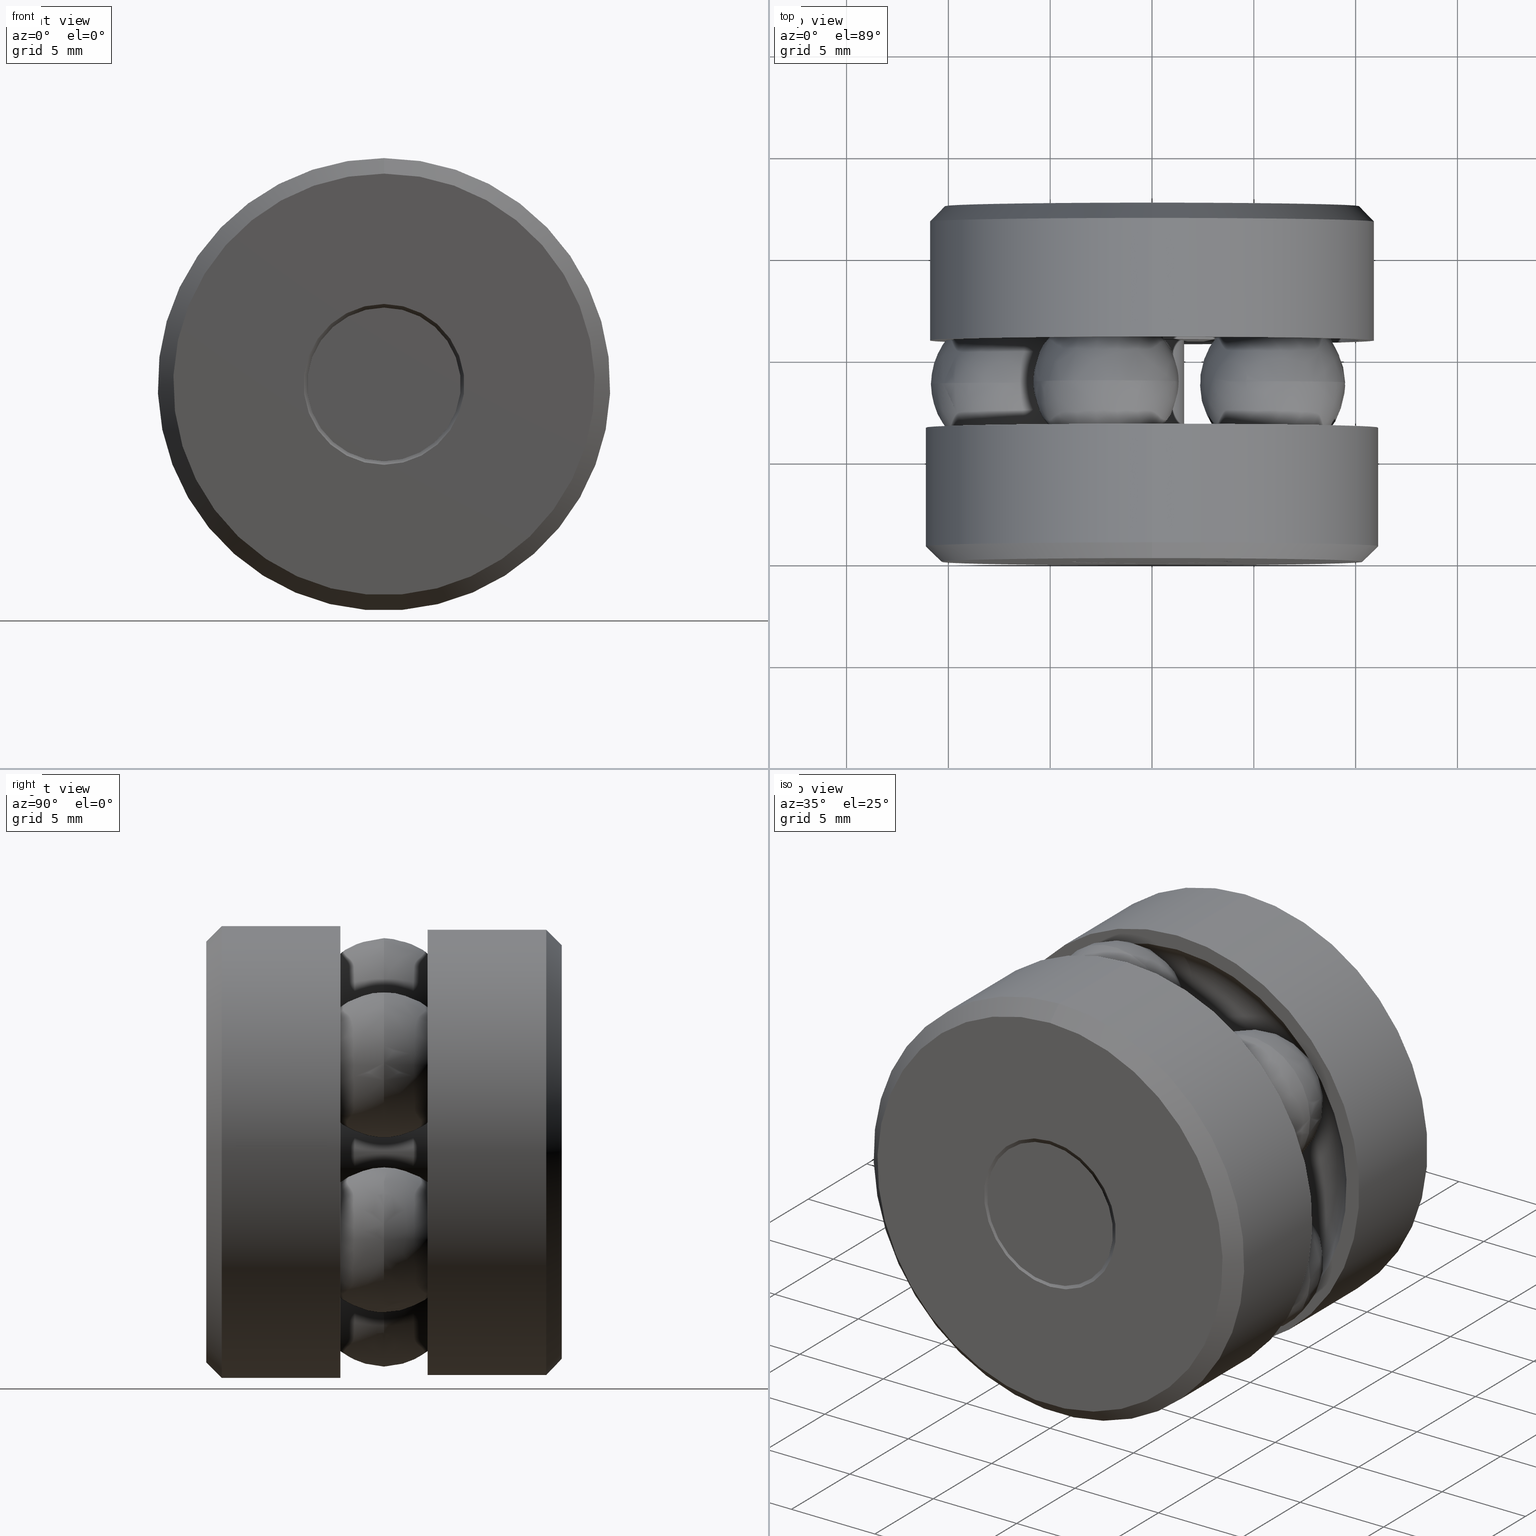
[diagram: canonical four-view strip — front | top / right | iso, engineering-drawing reading convention]
A machine part, canonical four-view strip (front | top / right | iso — engineering-drawing reading convention). The complete STEP part file that produces these views, byte-faithful:
ISO-10303-21;
HEADER;
FILE_DESCRIPTION (( 'STEP AP203' ),
    '1' );
FILE_NAME ('T-114RG_T-114RG-0014.step',
    '2016-02-04T15:34:10',
    ( '' ),
    ( '' ),
    'SwSTEP 2.0',
    'SolidWorks 2016',
    '' );
FILE_SCHEMA (( 'CONFIG_CONTROL_DESIGN' ));
ENDSEC;

DATA;
#1 = CARTESIAN_POINT ( 'NONE',  ( 0.2329968943799832800, 0.3437500000000000000, -0.1692821526602342500 ) ) ;
#2 = APPROVAL_DATE_TIME ( #118, #346 ) ;
#3 = FACE_BOUND ( 'NONE', #28, .T. ) ;
#4 = CLOSED_SHELL ( 'NONE', ( #478, #150, #63, #67, #280 ) ) ;
#5 = EDGE_LOOP ( 'NONE', ( #456 ) ) ;
#6 = APPROVAL ( #99, 'UNSPECIFIED' ) ;
#7 = DIRECTION ( 'NONE',  ( 0.0000000000000000000, 0.0000000000000000000, 1.000000000000000000 ) ) ;
#8 = EDGE_CURVE ( 'NONE', #77, #77, #245, .T. ) ;
#9 = FACE_OUTER_BOUND ( 'NONE', #102, .T. ) ;
#10 = DIRECTION ( 'NONE',  ( 0.0000000000000000000, 0.0000000000000000000, 1.000000000000000000 ) ) ;
#11 = EDGE_LOOP ( 'NONE', ( #332 ) ) ;
#12 = EDGE_LOOP ( 'NONE', ( #404 ) ) ;
#13 = DIRECTION ( 'NONE',  ( -0.0000000000000000000, 1.000000000000000000, -0.0000000000000000000 ) ) ;
#14 = CARTESIAN_POINT ( 'NONE',  ( 0.0000000000000000000, 0.08800856781186523800, 0.0000000000000000000 ) ) ;
#15 = CARTESIAN_POINT ( 'NONE',  ( 0.0000000000000000000, -1.045368599223303100E-018, 0.1555085678118642600 ) ) ;
#16 = AXIS2_PLACEMENT_3D ( 'NONE', #503, #502, #274 ) ;
#17 = APPROVAL_PERSON_ORGANIZATION ( #130, #346, #432 ) ;
#18 = CIRCLE ( 'NONE', #495, 0.1555085678118642600 ) ;
#19 = CARTESIAN_POINT ( 'NONE',  ( 0.0000000000000000000, 0.0000000000000000000, 0.0000000000000000000 ) ) ;
#20 = PLANE ( 'NONE',  #361 ) ;
#21 = EDGE_CURVE ( 'NONE', #295, #295, #18, .T. ) ;
#22 = ADVANCED_FACE ( 'NONE', ( #460, #344 ), #357, .T. ) ;
#23 = CARTESIAN_POINT ( 'NONE',  ( 0.0000000000000000000, 0.08593749999999998600, 0.06250000000000001400 ) ) ;
#24 = FACE_OUTER_BOUND ( 'NONE', #532, .T. ) ;
#25 = VERTEX_POINT ( 'NONE', #129 ) ;
#26 = ORIENTED_EDGE ( 'NONE', *, *, #345, .T. ) ;
#27 = ADVANCED_FACE ( 'NONE', ( #355, #449 ), #234, .F. ) ;
#28 = EDGE_LOOP ( 'NONE', ( #57 ) ) ;
#29 = CARTESIAN_POINT ( 'NONE',  ( 0.0000000000000000000, 0.4280500000000000400, 0.06750000000000004600 ) ) ;
#30 = AXIS2_PLACEMENT_3D ( 'NONE', #141, #438, #107 ) ;
#31 = COORDINATED_UNIVERSAL_TIME_OFFSET ( 5, 0, .BEHIND. ) ;
#32 = ORIENTED_EDGE ( 'NONE', *, *, #221, .F. ) ;
#33 = CARTESIAN_POINT ( 'NONE',  ( 0.0000000000000000000, 0.6574999999999996400, 0.0000000000000000000 ) ) ;
#34 = ADVANCED_BREP_SHAPE_REPRESENTATION ( 'T-114RG_T-114RG-0014', ( #74, #519, #276, #372, #426, #178, #337, #235, #463 ), #360 ) ;
#35 = CC_DESIGN_APPROVAL ( #6, ( #524 ) ) ;
#36 = DIRECTION ( 'NONE',  ( -0.3090169943749582800, 0.0000000000000000000, -0.9510565162951500900 ) ) ;
#37 = DIRECTION ( 'NONE',  ( -0.0000000000000000000, 1.000000000000000000, -0.0000000000000000000 ) ) ;
#38 = FACE_OUTER_BOUND ( 'NONE', #103, .T. ) ;
#39 = VERTEX_POINT ( 'NONE', #333 ) ;
#40 = ORIENTED_EDGE ( 'NONE', *, *, #8, .T. ) ;
#41 = AXIS2_PLACEMENT_3D ( 'NONE', #184, #183, #190 ) ;
#42 = DIRECTION ( 'NONE',  ( 0.0000000000000000000, 0.0000000000000000000, 1.000000000000000000 ) ) ;
#43 = CARTESIAN_POINT ( 'NONE',  ( 0.0000000000000000000, 0.03000000000000031100, 0.0000000000000000000 ) ) ;
#44 = DATE_AND_TIME ( #159, #271 ) ;
#45 = ORIENTED_EDGE ( 'NONE', *, *, #380, .T. ) ;
#46 = EDGE_LOOP ( 'NONE', ( #147 ) ) ;
#47 = AXIS2_PLACEMENT_3D ( 'NONE', #430, #520, #541 ) ;
#48 = APPLICATION_PROTOCOL_DEFINITION ( 'international standard', 'config_control_design', 1994, #275 ) ;
#49 = ORIENTED_EDGE ( 'NONE', *, *, #392, .T. ) ;
#50 = DIRECTION ( 'NONE',  ( 0.0000000000000000000, -1.000000000000000000, 0.0000000000000000000 ) ) ;
#51 = FACE_OUTER_BOUND ( 'NONE', #93, .T. ) ;
#52 = VERTEX_POINT ( 'NONE', #515 ) ;
#53 = EDGE_LOOP ( 'NONE', ( #267 ) ) ;
#54 = SHAPE_DEFINITION_REPRESENTATION ( #256, #34 ) ;
#55 = DIRECTION ( 'NONE',  ( 0.0000000000000000000, -0.0000000000000000000, -1.000000000000000000 ) ) ;
#56 = PERSON_AND_ORGANIZATION ( #489, #531 ) ;
#57 = ORIENTED_EDGE ( 'NONE', *, *, #200, .T. ) ;
#58 = CARTESIAN_POINT ( 'NONE',  ( 0.0000000000000000000, 0.03000000000000031100, 0.0000000000000000000 ) ) ;
#59 = CARTESIAN_POINT ( 'NONE',  ( 0.0000000000000000000, 0.6875000000000000000, 0.0000000000000000000 ) ) ;
#60 = DIRECTION ( 'NONE',  ( 0.0000000000000000000, 0.0000000000000000000, 1.000000000000000000 ) ) ;
#61 = DIRECTION ( 'NONE',  ( -0.0000000000000000000, 1.000000000000000000, -0.0000000000000000000 ) ) ;
#62 = CC_DESIGN_PERSON_AND_ORGANIZATION_ASSIGNMENT ( #70, #220, ( #524 ) ) ;
#63 = ADVANCED_FACE ( 'NONE', ( #3, #119 ), #424, .T. ) ;
#64 = FACE_OUTER_BOUND ( 'NONE', #481, .T. ) ;
#65 = VERTEX_POINT ( 'NONE', #504 ) ;
#66 = EDGE_LOOP ( 'NONE', ( #115 ) ) ;
#67 = ADVANCED_FACE ( 'NONE', ( #439, #334 ), #324, .T. ) ;
#68 = AXIS2_PLACEMENT_3D ( 'NONE', #127, #144, #143 ) ;
#69 = FACE_BOUND ( 'NONE', #80, .T. ) ;
#70 = PERSON_AND_ORGANIZATION ( #489, #531 ) ;
#71 = ORIENTED_EDGE ( 'NONE', *, *, #451, .T. ) ;
#72 = DIRECTION ( 'NONE',  ( -0.0000000000000000000, 1.000000000000000000, -0.0000000000000000000 ) ) ;
#73 = AXIS2_PLACEMENT_3D ( 'NONE', #469, #377, #441 ) ;
#74 = MANIFOLD_SOLID_BREP ( 'Revolve2[1]', #4 ) ;
#75 = DIRECTION ( 'NONE',  ( 0.0000000000000000000, 0.0000000000000000000, 1.000000000000000000 ) ) ;
#76 = FACE_BOUND ( 'NONE', #5, .T. ) ;
#77 = VERTEX_POINT ( 'NONE', #98 ) ;
#78 = EDGE_LOOP ( 'NONE', ( #296 ) ) ;
#79 = CLOSED_SHELL ( 'NONE', ( #527 ) ) ;
#80 = EDGE_LOOP ( 'NONE', ( #525 ) ) ;
#81 = CLOSED_SHELL ( 'NONE', ( #112 ) ) ;
#82 = CARTESIAN_POINT ( 'NONE',  ( -0.1484374999999990000, 0.0000000000000000000, 0.0000000000000000000 ) ) ;
#83 = DIRECTION ( 'NONE',  ( -0.0000000000000000000, 1.000000000000000000, -0.0000000000000000000 ) ) ;
#84 = FACE_OUTER_BOUND ( 'NONE', #181, .T. ) ;
#85 = COORDINATED_UNIVERSAL_TIME_OFFSET ( 5, 0, .BEHIND. ) ;
#86 = EDGE_LOOP ( 'NONE', ( #71 ) ) ;
#87 = AXIS2_PLACEMENT_3D ( 'NONE', #385, #379, #351 ) ;
#88 = DIRECTION ( 'NONE',  ( -0.9510565162951500900, 0.0000000000000000000, 0.3090169943749582800 ) ) ;
#89 = APPROVAL_STATUS ( 'not_yet_approved' ) ;
#90 =( NAMED_UNIT ( * ) PLANE_ANGLE_UNIT ( ) SI_UNIT ( $, .RADIAN. ) );
#91 = DIRECTION ( 'NONE',  ( 0.0000000000000000000, 0.0000000000000000000, 1.000000000000000000 ) ) ;
#92 = FACE_OUTER_BOUND ( 'NONE', #507, .T. ) ;
#93 = EDGE_LOOP ( 'NONE', ( #384 ) ) ;
#94 = EDGE_LOOP ( 'NONE', ( #455 ) ) ;
#95 = CC_DESIGN_DATE_AND_TIME_ASSIGNMENT ( #175, #222, ( #524 ) ) ;
#96 = CARTESIAN_POINT ( 'NONE',  ( 0.0000000000000000000, 0.2594499999999999600, 0.0000000000000000000 ) ) ;
#97 = APPROVAL_ROLE ( '' ) ;
#98 = CARTESIAN_POINT ( 'NONE',  ( 0.0000000000000000000, 0.2594499999999999000, 0.4003999999999999200 ) ) ;
#99 = APPROVAL_STATUS ( 'not_yet_approved' ) ;
#100 = DIRECTION ( 'NONE',  ( 0.0000000000000000000, 0.0000000000000000000, 1.000000000000000000 ) ) ;
#101 = CYLINDRICAL_SURFACE ( 'NONE', #73, 0.06750000000000001800 ) ;
#102 = EDGE_LOOP ( 'NONE', ( #411 ) ) ;
#103 = EDGE_LOOP ( 'NONE', ( #49 ) ) ;
#104 = SECURITY_CLASSIFICATION_LEVEL ( 'unclassified' ) ;
#105 = CARTESIAN_POINT ( 'NONE',  ( -0.2879999999999999200, 0.3437500000000000000, 0.0000000000000000000 ) ) ;
#106 = AXIS2_PLACEMENT_3D ( 'NONE', #33, #213, #322 ) ;
#107 = DIRECTION ( 'NONE',  ( 0.0000000000000000000, -0.0000000000000000000, -1.000000000000000000 ) ) ;
#108 = DIRECTION ( 'NONE',  ( 0.0000000000000000000, 0.0000000000000000000, 1.000000000000000000 ) ) ;
#109 = FACE_OUTER_BOUND ( 'NONE', #198, .T. ) ;
#110 = ADVANCED_FACE ( 'NONE', ( #109, #131 ), #313, .F. ) ;
#111 = DIRECTION ( 'NONE',  ( 0.0000000000000000000, 0.0000000000000000000, 1.000000000000000000 ) ) ;
#112 = ADVANCED_FACE ( 'NONE', ( ), #209, .T. ) ;
#113 = CIRCLE ( 'NONE', #163, 0.4375000000000000000 ) ;
#114 = EDGE_LOOP ( 'NONE', ( #486 ) ) ;
#115 = ORIENTED_EDGE ( 'NONE', *, *, #290, .T. ) ;
#116 = AXIS2_PLACEMENT_3D ( 'NONE', #232, #417, #413 ) ;
#117 = CARTESIAN_POINT ( 'NONE',  ( -0.08899689437998795100, 0.3437500000000000000, -0.2739042766930031000 ) ) ;
#118 = DATE_AND_TIME ( #233, #343 ) ;
#119 = FACE_OUTER_BOUND ( 'NONE', #202, .T. ) ;
#120 = DIRECTION ( 'NONE',  ( -0.0000000000000000000, 1.000000000000000000, -0.0000000000000000000 ) ) ;
#121 = PRODUCT_DEFINITION_FORMATION_WITH_SPECIFIED_SOURCE ( 'ANY', '', #269, .NOT_KNOWN. ) ;
#122 = CARTESIAN_POINT ( 'NONE',  ( 0.0000000000000000000, 0.5994914321881347200, 0.0000000000000000000 ) ) ;
#123 = CARTESIAN_POINT ( 'NONE',  ( 0.0000000000000000000, 0.08593749999999998600, 0.0000000000000000000 ) ) ;
#124 = CYLINDRICAL_SURFACE ( 'NONE', #501, 0.4304999999999999400 ) ;
#125 = DIRECTION ( 'NONE',  ( 0.0000000000000000000, 0.0000000000000000000, 1.000000000000000000 ) ) ;
#126 = CLOSED_SHELL ( 'NONE', ( #362, #482, #236, #239, #364, #194, #329, #440 ) ) ;
#127 = CARTESIAN_POINT ( 'NONE',  ( -0.08899689437998406500, 0.3437500000000000000, 0.2739042766930044300 ) ) ;
#128 = CARTESIAN_POINT ( 'NONE',  ( 0.0000000000000000000, 0.2594499999999999600, 0.1755999999999999200 ) ) ;
#129 = CARTESIAN_POINT ( 'NONE',  ( 0.0000000000000000000, 0.08800856781186523800, 0.06750000000000000400 ) ) ;
#130 = PERSON_AND_ORGANIZATION ( #489, #531 ) ;
#131 = FACE_BOUND ( 'NONE', #241, .T. ) ;
#132 = EDGE_LOOP ( 'NONE', ( #433 ) ) ;
#133 = AXIS2_PLACEMENT_3D ( 'NONE', #436, #516, #7 ) ;
#134 = UNCERTAINTY_MEASURE_WITH_UNIT (LENGTH_MEASURE( 1.000000000000000100E-005 ), #398, 'distance_accuracy_value', 'NONE');
#135 = PLANE ( 'NONE',  #30 ) ;
#136 = CONICAL_SURFACE ( 'NONE', #369, 0.06250000000000001400, 0.7853981633974423900 ) ;
#137 = VERTEX_POINT ( 'NONE', #128 ) ;
#138 = ORIENTED_EDGE ( 'NONE', *, *, #434, .F. ) ;
#139 = CARTESIAN_POINT ( 'NONE',  ( 0.0000000000000000000, 0.4280499999999999900, 0.4003999999999999200 ) ) ;
#140 = PLANE ( 'NONE',  #539 ) ;
#141 = CARTESIAN_POINT ( 'NONE',  ( -0.4304999999999999400, 0.4280499999999999900, 0.0000000000000000000 ) ) ;
#142 = DIRECTION ( 'NONE',  ( -1.000000000000000000, 0.0000000000000000000, 0.0000000000000000000 ) ) ;
#143 = DIRECTION ( 'NONE',  ( -0.3090169943749448400, 0.0000000000000000000, 0.9510565162951544200 ) ) ;
#144 = DIRECTION ( 'NONE',  ( 0.9510565162951544200, -0.0000000000000000000, 0.3090169943749448400 ) ) ;
#145 = PERSON_AND_ORGANIZATION ( #489, #531 ) ;
#146 = EDGE_LOOP ( 'NONE', ( #378 ) ) ;
#147 = ORIENTED_EDGE ( 'NONE', *, *, #345, .F. ) ;
#148 = DIRECTION ( 'NONE',  ( 0.0000000000000000000, 0.0000000000000000000, 1.000000000000000000 ) ) ;
#149 = DIRECTION ( 'NONE',  ( -0.0000000000000000000, 1.000000000000000000, -0.0000000000000000000 ) ) ;
#150 = ADVANCED_FACE ( 'NONE', ( #535 ), #321, .T. ) ;
#151 = CARTESIAN_POINT ( 'NONE',  ( 0.0000000000000000000, 0.6875000000000000000, 0.0000000000000000000 ) ) ;
#152 = APPROVAL ( #89, 'UNSPECIFIED' ) ;
#153 = ADVANCED_FACE ( 'NONE', ( #414, #196 ), #135, .T. ) ;
#154 = CONICAL_SURFACE ( 'NONE', #255, 0.1555085678118642600, 0.7853981633974427300 ) ;
#155 = VERTEX_POINT ( 'NONE', #330 ) ;
#156 = CLOSED_SHELL ( 'NONE', ( #110, #443, #201, #27, #153, #325, #284, #22 ) ) ;
#157 = EDGE_CURVE ( 'NONE', #382, #382, #218, .T. ) ;
#158 = CIRCLE ( 'NONE', #300, 0.06750000000000000400 ) ;
#159 = CALENDAR_DATE ( 2016, 4, 2 ) ;
#160 = EDGE_LOOP ( 'NONE', ( #446 ) ) ;
#161 = EDGE_LOOP ( 'NONE', ( #138 ) ) ;
#162 = CARTESIAN_POINT ( 'NONE',  ( 0.0000000000000000000, 0.2594499999999999000, 0.0000000000000000000 ) ) ;
#163 = AXIS2_PLACEMENT_3D ( 'NONE', #43, #37, #108 ) ;
#164 = CARTESIAN_POINT ( 'NONE',  ( 0.0000000000000000000, 0.6875000000000000000, 0.0000000000000000000 ) ) ;
#165 = AXIS2_PLACEMENT_3D ( 'NONE', #122, #170, #125 ) ;
#166 = FACE_OUTER_BOUND ( 'NONE', #86, .T. ) ;
#167 = VERTEX_POINT ( 'NONE', #522 ) ;
#168 = EDGE_LOOP ( 'NONE', ( #205 ) ) ;
#169 = EDGE_LOOP ( 'NONE', ( #206 ) ) ;
#170 = DIRECTION ( 'NONE',  ( -0.0000000000000000000, 1.000000000000000000, -0.0000000000000000000 ) ) ;
#171 = DIRECTION ( 'NONE',  ( 0.0000000000000000000, 0.0000000000000000000, 1.000000000000000000 ) ) ;
#172 = CYLINDRICAL_SURFACE ( 'NONE', #490, 0.06750000000000007400 ) ;
#173 = AXIS2_PLACEMENT_3D ( 'NONE', #352, #309, #308 ) ;
#174 = CARTESIAN_POINT ( 'NONE',  ( 0.0000000000000000000, 0.0000000000000000000, 0.1484374999999990000 ) ) ;
#175 = DATE_AND_TIME ( #287, #396 ) ;
#176 = CLOSED_SHELL ( 'NONE', ( #521 ) ) ;
#177 = DIRECTION ( 'NONE',  ( -0.0000000000000000000, 1.000000000000000000, -0.0000000000000000000 ) ) ;
#178 = MANIFOLD_SOLID_BREP ( 'BALLS[2]', #252 ) ;
#179 = CIRCLE ( 'NONE', #173, 0.4375000000000000000 ) ;
#180 = CC_DESIGN_APPROVAL ( #152, ( #121 ) ) ;
#181 = EDGE_LOOP ( 'NONE', ( #305 ) ) ;
#182 = DIRECTION ( 'NONE',  ( -0.0000000000000000000, 1.000000000000000000, 0.0000000000000000000 ) ) ;
#183 = DIRECTION ( 'NONE',  ( -0.0000000000000000000, 1.000000000000000000, -0.0000000000000000000 ) ) ;
#184 = CARTESIAN_POINT ( 'NONE',  ( 0.0000000000000000000, 0.0000000000000000000, 0.0000000000000000000 ) ) ;
#185 = FACE_BOUND ( 'NONE', #318, .T. ) ;
#186 = DIRECTION ( 'NONE',  ( -0.0000000000000000000, 1.000000000000000000, 0.0000000000000000000 ) ) ;
#187 = APPROVAL_DATE_TIME ( #304, #6 ) ;
#188 = CLOSED_SHELL ( 'NONE', ( #407 ) ) ;
#189 = DIRECTION ( 'NONE',  ( 0.0000000000000000000, 0.0000000000000000000, 1.000000000000000000 ) ) ;
#190 = DIRECTION ( 'NONE',  ( 0.0000000000000000000, 0.0000000000000000000, 1.000000000000000000 ) ) ;
#191 = DIRECTION ( 'NONE',  ( -0.0000000000000000000, 1.000000000000000000, -0.0000000000000000000 ) ) ;
#192 = AXIS2_PLACEMENT_3D ( 'NONE', #517, #437, #508 ) ;
#193 = DIRECTION ( 'NONE',  ( 0.0000000000000000000, 0.0000000000000000000, 1.000000000000000000 ) ) ;
#194 = ADVANCED_FACE ( 'NONE', ( #92, #76 ), #312, .T. ) ;
#195 = APPLICATION_CONTEXT ( 'configuration controlled 3d designs of mechanical parts and assemblies' ) ;
#196 = FACE_OUTER_BOUND ( 'NONE', #12, .T. ) ;
#197 = CONICAL_SURFACE ( 'NONE', #246, 0.4375000000000000000, 0.7853981633974429500 ) ;
#198 = EDGE_LOOP ( 'NONE', ( #26 ) ) ;
#199 = CARTESIAN_POINT ( 'NONE',  ( 0.0000000000000000000, 0.4280499999999999900, 0.0000000000000000000 ) ) ;
#200 = EDGE_CURVE ( 'NONE', #65, #65, #403, .T. ) ;
#201 = ADVANCED_FACE ( 'NONE', ( #505, #64 ), #212, .T. ) ;
#202 = EDGE_LOOP ( 'NONE', ( #494 ) ) ;
#203 = SPHERICAL_SURFACE ( 'NONE', #217, 0.1405000000000000400 ) ;
#204 = APPROVAL_PERSON_ORGANIZATION ( #317, #6, #97 ) ;
#205 = ORIENTED_EDGE ( 'NONE', *, *, #425, .T. ) ;
#206 = ORIENTED_EDGE ( 'NONE', *, *, #200, .F. ) ;
#207 = APPLICATION_PROTOCOL_DEFINITION ( 'international standard', 'config_control_design', 1994, #195 ) ;
#208 = AXIS2_PLACEMENT_3D ( 'NONE', #412, #342, #340 ) ;
#209 = SPHERICAL_SURFACE ( 'NONE', #68, 0.1405000000000000400 ) ;
#210 = EDGE_LOOP ( 'NONE', ( #474 ) ) ;
#211 = CC_DESIGN_PERSON_AND_ORGANIZATION_ASSIGNMENT ( #370, #230, ( #121 ) ) ;
#212 = PLANE ( 'NONE',  #208 ) ;
#213 = DIRECTION ( 'NONE',  ( -0.0000000000000000000, 1.000000000000000000, -0.0000000000000000000 ) ) ;
#214 = CIRCLE ( 'NONE', #534, 0.4304999999999999400 ) ;
#215 = ORIENTED_EDGE ( 'NONE', *, *, #416, .F. ) ;
#216 = CARTESIAN_POINT ( 'NONE',  ( -0.1555085678118644000, 0.6875000000000000000, 0.0000000000000000000 ) ) ;
#217 = AXIS2_PLACEMENT_3D ( 'NONE', #1, #388, #500 ) ;
#218 = CIRCLE ( 'NONE', #540, 0.4074999999999999700 ) ;
#219 = DIRECTION ( 'NONE',  ( -0.0000000000000000000, 1.000000000000000000, -0.0000000000000000000 ) ) ;
#220 = PERSON_AND_ORGANIZATION_ROLE ( 'creator' ) ;
#221 = EDGE_CURVE ( 'NONE', #493, #493, #179, .T. ) ;
#222 = DATE_TIME_ROLE ( 'creation_date' ) ;
#223 = DIRECTION ( 'NONE',  ( 0.0000000000000000000, 0.0000000000000000000, 1.000000000000000000 ) ) ;
#224 = CARTESIAN_POINT ( 'NONE',  ( 0.0000000000000000000, 0.6875000000000000000, 0.1484374999999991100 ) ) ;
#225 = CIRCLE ( 'NONE', #133, 0.06750000000000010200 ) ;
#226 = ORIENTED_EDGE ( 'NONE', *, *, #529, .T. ) ;
#227 = DIRECTION ( 'NONE',  ( -0.0000000000000000000, 1.000000000000000000, 0.0000000000000000000 ) ) ;
#228 = DIRECTION ( 'NONE',  ( 0.0000000000000000000, 0.0000000000000000000, 1.000000000000000000 ) ) ;
#229 = DIRECTION ( 'NONE',  ( -0.0000000000000000000, 1.000000000000000000, -0.0000000000000000000 ) ) ;
#230 = PERSON_AND_ORGANIZATION_ROLE ( 'creator' ) ;
#231 = CARTESIAN_POINT ( 'NONE',  ( 0.0000000000000000000, 0.6875000000000000000, 0.0000000000000000000 ) ) ;
#232 = CARTESIAN_POINT ( 'NONE',  ( -0.1755999999999999800, 0.2594499999999999600, 0.0000000000000000000 ) ) ;
#233 = CALENDAR_DATE ( 2016, 4, 2 ) ;
#234 = TOROIDAL_SURFACE ( 'NONE', #301, 0.2879999999999999200, 0.1404999999999999300 ) ;
#235 = MANIFOLD_SOLID_BREP ( 'BALLS[4]', #79 ) ;
#236 = ADVANCED_FACE ( 'NONE', ( #294, #523 ), #393, .T. ) ;
#237 = CARTESIAN_POINT ( 'NONE',  ( 0.0000000000000000000, 0.4280500000000000400, 0.0000000000000000000 ) ) ;
#238 = CC_DESIGN_PERSON_AND_ORGANIZATION_ASSIGNMENT ( #257, #260, ( #121 ) ) ;
#239 = ADVANCED_FACE ( 'NONE', ( #389, #51 ), #154, .F. ) ;
#240 = CIRCLE ( 'NONE', #475, 0.1555085678118644000 ) ;
#241 = EDGE_LOOP ( 'NONE', ( #499 ) ) ;
#242 = EDGE_CURVE ( 'NONE', #390, #390, #265, .T. ) ;
#243 = DIRECTION ( 'NONE',  ( -0.0000000000000000000, 1.000000000000000000, -0.0000000000000000000 ) ) ;
#244 = DATE_AND_TIME ( #354, #459 ) ;
#245 = CIRCLE ( 'NONE', #408, 0.4003999999999999200 ) ;
#246 = AXIS2_PLACEMENT_3D ( 'NONE', #58, #262, #91 ) ;
#247 = AXIS2_PLACEMENT_3D ( 'NONE', #237, #326, #148 ) ;
#248 = EDGE_CURVE ( 'NONE', #282, #282, #479, .T. ) ;
#249 = CARTESIAN_POINT ( 'NONE',  ( 0.0000000000000000000, 0.0000000000000000000, 0.0000000000000000000 ) ) ;
#250 = FACE_OUTER_BOUND ( 'NONE', #259, .T. ) ;
#251 = VERTEX_POINT ( 'NONE', #174 ) ;
#252 = CLOSED_SHELL ( 'NONE', ( #405 ) ) ;
#253 = DIRECTION ( 'NONE',  ( 0.0000000000000000000, -1.000000000000000000, 0.0000000000000000000 ) ) ;
#254 = CARTESIAN_POINT ( 'NONE',  ( 0.0000000000000000000, 0.08593749999999998600, 0.0000000000000000000 ) ) ;
#255 = AXIS2_PLACEMENT_3D ( 'NONE', #400, #394, #353 ) ;
#256 = PRODUCT_DEFINITION_SHAPE ( 'NONE', 'NONE',  #524 ) ;
#257 = PERSON_AND_ORGANIZATION ( #489, #531 ) ;
#258 = ORIENTED_EDGE ( 'NONE', *, *, #242, .F. ) ;
#259 = EDGE_LOOP ( 'NONE', ( #32 ) ) ;
#260 = PERSON_AND_ORGANIZATION_ROLE ( 'design_supplier' ) ;
#261 = PERSON_AND_ORGANIZATION_ROLE ( 'classification_officer' ) ;
#262 = DIRECTION ( 'NONE',  ( -0.0000000000000000000, 1.000000000000000000, -0.0000000000000000000 ) ) ;
#263 = DIRECTION ( 'NONE',  ( 0.0000000000000000000, 0.0000000000000000000, 1.000000000000000000 ) ) ;
#264 = SECURITY_CLASSIFICATION ( '', '', #104 ) ;
#265 = CIRCLE ( 'NONE', #320, 0.1755999999999999800 ) ;
#266 = VERTEX_POINT ( 'NONE', #327 ) ;
#267 = ORIENTED_EDGE ( 'NONE', *, *, #425, .F. ) ;
#268 = AXIS2_PLACEMENT_3D ( 'NONE', #216, #227, #223 ) ;
#269 = PRODUCT ( 'T-114RG_T-114RG-0014', 'T-114RG_T-114RG-0014', '', ( #307 ) ) ;
#270 = FACE_OUTER_BOUND ( 'NONE', #368, .T. ) ;
#271 = LOCAL_TIME ( 10, 34, 10.00000000000000000, #383 ) ;
#272 = EDGE_LOOP ( 'NONE', ( #533 ) ) ;
#273 = DIRECTION ( 'NONE',  ( 0.0000000000000000000, 0.0000000000000000000, 1.000000000000000000 ) ) ;
#274 = DIRECTION ( 'NONE',  ( 0.0000000000000000000, 0.0000000000000000000, 1.000000000000000000 ) ) ;
#275 = APPLICATION_CONTEXT ( 'configuration controlled 3d designs of mechanical parts and assemblies' ) ;
#276 = MANIFOLD_SOLID_BREP ( 'Revolve2[3]', #126 ) ;
#277 = AXIS2_PLACEMENT_3D ( 'NONE', #123, #83, #193 ) ;
#278 = CARTESIAN_POINT ( 'NONE',  ( 0.0000000000000000000, 0.6875000000000000000, 0.0000000000000000000 ) ) ;
#279 = DIRECTION ( 'NONE',  ( 0.0000000000000000000, 0.0000000000000000000, -1.000000000000000000 ) ) ;
#280 = ADVANCED_FACE ( 'NONE', ( #166, #281 ), #136, .T. ) ;
#281 = FACE_BOUND ( 'NONE', #161, .T. ) ;
#282 = VERTEX_POINT ( 'NONE', #510 ) ;
#283 = ORIENTED_EDGE ( 'NONE', *, *, #157, .T. ) ;
#284 = ADVANCED_FACE ( 'NONE', ( #38, #366 ), #348, .T. ) ;
#285 = DIMENSIONAL_EXPONENTS ( 1.000000000000000000, 0.0000000000000000000, 0.0000000000000000000, 0.0000000000000000000, 0.0000000000000000000, 0.0000000000000000000, 0.0000000000000000000 ) ;
#286 = CIRCLE ( 'NONE', #387, 0.1484374999999990000 ) ;
#287 = CALENDAR_DATE ( 2016, 4, 2 ) ;
#288 = ORIENTED_EDGE ( 'NONE', *, *, #457, .T. ) ;
#289 = AXIS2_PLACEMENT_3D ( 'NONE', #386, #302, #402 ) ;
#290 = EDGE_CURVE ( 'NONE', #167, #167, #453, .T. ) ;
#291 = DIRECTION ( 'NONE',  ( -0.0000000000000000000, 1.000000000000000000, -0.0000000000000000000 ) ) ;
#292 = DATE_TIME_ROLE ( 'classification_date' ) ;
#293 = DIRECTION ( 'NONE',  ( 0.0000000000000000000, 0.0000000000000000000, 1.000000000000000000 ) ) ;
#294 = FACE_BOUND ( 'NONE', #210, .T. ) ;
#295 = VERTEX_POINT ( 'NONE', #15 ) ;
#296 = ORIENTED_EDGE ( 'NONE', *, *, #157, .F. ) ;
#297 = CC_DESIGN_PERSON_AND_ORGANIZATION_ASSIGNMENT ( #145, #261, ( #264 ) ) ;
#298 = DIRECTION ( 'NONE',  ( -0.0000000000000000000, 1.000000000000000000, -0.0000000000000000000 ) ) ;
#299 = CARTESIAN_POINT ( 'NONE',  ( 0.0000000000000000000, -3.179309805437058200E-017, 0.0000000000000000000 ) ) ;
#300 = AXIS2_PLACEMENT_3D ( 'NONE', #14, #13, #10 ) ;
#301 = AXIS2_PLACEMENT_3D ( 'NONE', #315, #219, #75 ) ;
#302 = DIRECTION ( 'NONE',  ( 0.0000000000000000000, -1.000000000000000000, 0.0000000000000000000 ) ) ;
#303 = FACE_OUTER_BOUND ( 'NONE', #160, .T. ) ;
#304 = DATE_AND_TIME ( #410, #513 ) ;
#305 = ORIENTED_EDGE ( 'NONE', *, *, #221, .T. ) ;
#306 = PERSON_AND_ORGANIZATION_ROLE ( 'design_owner' ) ;
#307 = MECHANICAL_CONTEXT ( 'NONE', #195, 'mechanical' ) ;
#308 = DIRECTION ( 'NONE',  ( 0.0000000000000000000, 0.0000000000000000000, 1.000000000000000000 ) ) ;
#309 = DIRECTION ( 'NONE',  ( -0.0000000000000000000, 1.000000000000000000, -0.0000000000000000000 ) ) ;
#310 = AXIS2_PLACEMENT_3D ( 'NONE', #117, #88, #36 ) ;
#311 = DIRECTION ( 'NONE',  ( 1.000000000000000000, 0.0000000000000000000, 0.0000000000000000000 ) ) ;
#312 = PLANE ( 'NONE',  #116 ) ;
#313 = CONICAL_SURFACE ( 'NONE', #165, 0.06750000000000010200, 0.7853981633974430600 ) ;
#314 = EDGE_LOOP ( 'NONE', ( #514 ) ) ;
#315 = CARTESIAN_POINT ( 'NONE',  ( 0.0000000000000000000, 0.3437500000000000000, 0.0000000000000000000 ) ) ;
#316 = SPHERICAL_SURFACE ( 'NONE', #192, 0.1405000000000000400 ) ;
#317 = PERSON_AND_ORGANIZATION ( #489, #531 ) ;
#318 = EDGE_LOOP ( 'NONE', ( #283 ) ) ;
#319 = DIRECTION ( 'NONE',  ( 0.0000000000000000000, 0.0000000000000000000, 1.000000000000000000 ) ) ;
#320 = AXIS2_PLACEMENT_3D ( 'NONE', #199, #191, #273 ) ;
#321 = PLANE ( 'NONE',  #512 ) ;
#322 = DIRECTION ( 'NONE',  ( 0.0000000000000000000, 0.0000000000000000000, 1.000000000000000000 ) ) ;
#323 = DIRECTION ( 'NONE',  ( 0.0000000000000000000, -1.000000000000000000, 0.0000000000000000000 ) ) ;
#324 = CYLINDRICAL_SURFACE ( 'NONE', #41, 0.06250000000000005600 ) ;
#325 = ADVANCED_FACE ( 'NONE', ( #374, #492 ), #124, .T. ) ;
#326 = DIRECTION ( 'NONE',  ( -0.0000000000000000000, 1.000000000000000000, -0.0000000000000000000 ) ) ;
#327 = CARTESIAN_POINT ( 'NONE',  ( 0.0000000000000000000, 0.6574999999999996400, 0.4304999999999999400 ) ) ;
#328 = CC_DESIGN_DATE_AND_TIME_ASSIGNMENT ( #244, #292, ( #264 ) ) ;
#329 = ADVANCED_FACE ( 'NONE', ( #24, #9 ), #465, .F. ) ;
#330 = CARTESIAN_POINT ( 'NONE',  ( 0.0000000000000000000, 0.5994914321881347200, 0.06750000000000010200 ) ) ;
#331 = FACE_OUTER_BOUND ( 'NONE', #421, .T. ) ;
#332 = ORIENTED_EDGE ( 'NONE', *, *, #380, .F. ) ;
#333 = CARTESIAN_POINT ( 'NONE',  ( 0.0000000000000000000, 0.03000000000000031100, 0.4375000000000000000 ) ) ;
#334 = FACE_OUTER_BOUND ( 'NONE', #169, .T. ) ;
#335 = AXIS2_PLACEMENT_3D ( 'NONE', #59, #120, #526 ) ;
#336 = AXIS2_PLACEMENT_3D ( 'NONE', #96, #61, #42 ) ;
#337 = MANIFOLD_SOLID_BREP ( 'BALLS[3]', #188 ) ;
#338 = FACE_OUTER_BOUND ( 'NONE', #66, .T. ) ;
#339 = ORIENTED_EDGE ( 'NONE', *, *, #373, .T. ) ;
#340 = DIRECTION ( 'NONE',  ( 0.0000000000000000000, -0.0000000000000000000, -1.000000000000000000 ) ) ;
#341 = AXIS2_PLACEMENT_3D ( 'NONE', #231, #229, #228 ) ;
#342 = DIRECTION ( 'NONE',  ( 0.0000000000000000000, -1.000000000000000000, 0.0000000000000000000 ) ) ;
#343 = LOCAL_TIME ( 10, 34, 10.00000000000000000, #448 ) ;
#344 = FACE_BOUND ( 'NONE', #46, .T. ) ;
#345 = EDGE_CURVE ( 'NONE', #52, #52, #240, .T. ) ;
#346 = APPROVAL ( #458, 'UNSPECIFIED' ) ;
#347 = CARTESIAN_POINT ( 'NONE',  ( 0.0000000000000000000, -1.045368599223303100E-018, 0.0000000000000000000 ) ) ;
#348 = CONICAL_SURFACE ( 'NONE', #399, 0.4005000000000000200, 0.7853981633974415100 ) ;
#349 = ORIENTED_EDGE ( 'NONE', *, *, #529, .F. ) ;
#350 = AXIS2_PLACEMENT_3D ( 'NONE', #151, #149, #189 ) ;
#351 = DIRECTION ( 'NONE',  ( 0.0000000000000000000, 0.0000000000000000000, 1.000000000000000000 ) ) ;
#352 = CARTESIAN_POINT ( 'NONE',  ( 0.0000000000000000000, 0.2594499999999997900, 0.0000000000000000000 ) ) ;
#353 = DIRECTION ( 'NONE',  ( 0.0000000000000000000, 0.0000000000000000000, -1.000000000000000000 ) ) ;
#354 = CALENDAR_DATE ( 2016, 4, 2 ) ;
#355 = FACE_OUTER_BOUND ( 'NONE', #371, .T. ) ;
#356 = DIRECTION ( 'NONE',  ( 0.0000000000000000000, 0.0000000000000000000, 1.000000000000000000 ) ) ;
#357 = PLANE ( 'NONE',  #268 ) ;
#358 = CARTESIAN_POINT ( 'NONE',  ( 0.0000000000000000000, 0.4280500000000000400, 0.4304999999999999400 ) ) ;
#359 = DIRECTION ( 'NONE',  ( 0.0000000000000000000, 0.0000000000000000000, 1.000000000000000000 ) ) ;
#360 =( GEOMETRIC_REPRESENTATION_CONTEXT ( 3 ) GLOBAL_UNCERTAINTY_ASSIGNED_CONTEXT ( ( #134 ) ) GLOBAL_UNIT_ASSIGNED_CONTEXT ( ( #398, #90, #450 ) ) REPRESENTATION_CONTEXT ( 'NONE', 'WORKASPACE' ) );
#361 = AXIS2_PLACEMENT_3D ( 'NONE', #423, #186, #171 ) ;
#362 = ADVANCED_FACE ( 'NONE', ( #444, #250 ), #431, .T. ) ;
#363 = DIRECTION ( 'NONE',  ( -0.0000000000000000000, 1.000000000000000000, -0.0000000000000000000 ) ) ;
#364 = ADVANCED_FACE ( 'NONE', ( #338, #331 ), #101, .F. ) ;
#365 = DIRECTION ( 'NONE',  ( 0.0000000000000000000, 0.0000000000000000000, -1.000000000000000000 ) ) ;
#366 = FACE_BOUND ( 'NONE', #94, .T. ) ;
#367 = VERTEX_POINT ( 'NONE', #23 ) ;
#368 = EDGE_LOOP ( 'NONE', ( #215 ) ) ;
#369 = AXIS2_PLACEMENT_3D ( 'NONE', #254, #323, #365 ) ;
#370 = PERSON_AND_ORGANIZATION ( #489, #531 ) ;
#371 = EDGE_LOOP ( 'NONE', ( #391 ) ) ;
#372 = MANIFOLD_SOLID_BREP ( 'Revolve3', #176 ) ;
#373 = EDGE_CURVE ( 'NONE', #480, #480, #214, .T. ) ;
#374 = FACE_OUTER_BOUND ( 'NONE', #538, .T. ) ;
#375 = CC_DESIGN_APPROVAL ( #346, ( #264 ) ) ;
#376 = VERTEX_POINT ( 'NONE', #139 ) ;
#377 = DIRECTION ( 'NONE',  ( -0.0000000000000000000, 1.000000000000000000, -0.0000000000000000000 ) ) ;
#378 = ORIENTED_EDGE ( 'NONE', *, *, #434, .T. ) ;
#379 = DIRECTION ( 'NONE',  ( -0.0000000000000000000, 1.000000000000000000, -0.0000000000000000000 ) ) ;
#380 = EDGE_CURVE ( 'NONE', #376, #376, #537, .T. ) ;
#381 = CARTESIAN_POINT ( 'NONE',  ( 0.0000000000000000000, 0.0000000000000000000, 0.0000000000000000000 ) ) ;
#382 = VERTEX_POINT ( 'NONE', #488 ) ;
#383 = COORDINATED_UNIVERSAL_TIME_OFFSET ( 5, 0, .BEHIND. ) ;
#384 = ORIENTED_EDGE ( 'NONE', *, *, #21, .F. ) ;
#385 = CARTESIAN_POINT ( 'NONE',  ( 0.0000000000000000000, 0.6015625000000000000, 0.0000000000000000000 ) ) ;
#386 = CARTESIAN_POINT ( 'NONE',  ( -0.1555085678118642600, -1.641923332679694300E-017, 0.0000000000000000000 ) ) ;
#387 = AXIS2_PLACEMENT_3D ( 'NONE', #381, #72, #60 ) ;
#388 = DIRECTION ( 'NONE',  ( -0.5877852522924801300, 0.0000000000000000000, -0.8090169943749422300 ) ) ;
#389 = FACE_BOUND ( 'NONE', #415, .T. ) ;
#390 = VERTEX_POINT ( 'NONE', #496 ) ;
#391 = ORIENTED_EDGE ( 'NONE', *, *, #242, .T. ) ;
#392 = EDGE_CURVE ( 'NONE', #266, #266, #530, .T. ) ;
#393 = PLANE ( 'NONE',  #289 ) ;
#394 = DIRECTION ( 'NONE',  ( 0.0000000000000000000, -1.000000000000000000, 0.0000000000000000000 ) ) ;
#395 = FACE_OUTER_BOUND ( 'NONE', #53, .T. ) ;
#396 = LOCAL_TIME ( 10, 34, 10.00000000000000000, #498 ) ;
#397 = ORIENTED_EDGE ( 'NONE', *, *, #248, .T. ) ;
#398 =( CONVERSION_BASED_UNIT ( 'INCH', #445 ) LENGTH_UNIT ( ) NAMED_UNIT ( #285 ) );
#399 = AXIS2_PLACEMENT_3D ( 'NONE', #278, #253, #279 ) ;
#400 = CARTESIAN_POINT ( 'NONE',  ( 0.0000000000000000000, -1.045368599223303100E-018, 0.0000000000000000000 ) ) ;
#401 = EDGE_CURVE ( 'NONE', #155, #155, #225, .T. ) ;
#402 = DIRECTION ( 'NONE',  ( 0.0000000000000000000, -0.0000000000000000000, -1.000000000000000000 ) ) ;
#403 = CIRCLE ( 'NONE', #87, 0.06250000000000009700 ) ;
#404 = ORIENTED_EDGE ( 'NONE', *, *, #373, .F. ) ;
#405 = ADVANCED_FACE ( 'NONE', ( ), #316, .T. ) ;
#406 = CC_DESIGN_SECURITY_CLASSIFICATION ( #264, ( #121 ) ) ;
#407 = ADVANCED_FACE ( 'NONE', ( ), #203, .T. ) ;
#408 = AXIS2_PLACEMENT_3D ( 'NONE', #162, #291, #356 ) ;
#409 = CIRCLE ( 'NONE', #247, 0.06750000000000004600 ) ;
#410 = CALENDAR_DATE ( 2016, 4, 2 ) ;
#411 = ORIENTED_EDGE ( 'NONE', *, *, #457, .F. ) ;
#412 = CARTESIAN_POINT ( 'NONE',  ( -0.1756000000000000100, 0.4280499999999999900, 0.0000000000000000000 ) ) ;
#413 = DIRECTION ( 'NONE',  ( 0.0000000000000000000, 0.0000000000000000000, 1.000000000000000000 ) ) ;
#414 = FACE_BOUND ( 'NONE', #467, .T. ) ;
#415 = EDGE_LOOP ( 'NONE', ( #226 ) ) ;
#416 = EDGE_CURVE ( 'NONE', #39, #39, #113, .T. ) ;
#417 = DIRECTION ( 'NONE',  ( -0.0000000000000000000, 1.000000000000000000, 0.0000000000000000000 ) ) ;
#418 = CARTESIAN_POINT ( 'NONE',  ( 0.0000000000000000000, 0.4280500000000000400, 0.0000000000000000000 ) ) ;
#419 = FACE_OUTER_BOUND ( 'NONE', #272, .T. ) ;
#420 = PERSON_AND_ORGANIZATION ( #489, #531 ) ;
#421 = EDGE_LOOP ( 'NONE', ( #349 ) ) ;
#422 = AXIS2_PLACEMENT_3D ( 'NONE', #477, #476, #428 ) ;
#423 = CARTESIAN_POINT ( 'NONE',  ( -0.4375000000000000000, 0.2594499999999998500, 0.0000000000000000000 ) ) ;
#424 = CONICAL_SURFACE ( 'NONE', #350, 0.1484374999999991100, 0.7853981633974427300 ) ;
#425 = EDGE_CURVE ( 'NONE', #466, #466, #409, .T. ) ;
#426 = MANIFOLD_SOLID_BREP ( 'BALLS[1]', #81 ) ;
#427 = PRODUCT_RELATED_PRODUCT_CATEGORY ( 'detail', '', ( #269 ) ) ;
#428 = DIRECTION ( 'NONE',  ( 0.0000000000000000000, 0.0000000000000000000, 1.000000000000000000 ) ) ;
#429 = DIRECTION ( 'NONE',  ( 0.0000000000000000000, 0.0000000000000000000, 1.000000000000000000 ) ) ;
#430 = CARTESIAN_POINT ( 'NONE',  ( 0.0000000000000000000, 0.0000000000000000000, 0.0000000000000000000 ) ) ;
#431 = CYLINDRICAL_SURFACE ( 'NONE', #47, 0.4375000000000000000 ) ;
#432 = APPROVAL_ROLE ( '' ) ;
#433 = ORIENTED_EDGE ( 'NONE', *, *, #536, .T. ) ;
#434 = EDGE_CURVE ( 'NONE', #367, #367, #511, .T. ) ;
#435 = CARTESIAN_POINT ( 'NONE',  ( 0.0000000000000000000, 0.3437500000000000000, 0.0000000000000000000 ) ) ;
#436 = CARTESIAN_POINT ( 'NONE',  ( 0.0000000000000000000, 0.5994914321881347200, 0.0000000000000000000 ) ) ;
#437 = DIRECTION ( 'NONE',  ( 0.5877852522924684700, 0.0000000000000000000, -0.8090169943749507800 ) ) ;
#438 = DIRECTION ( 'NONE',  ( 0.0000000000000000000, -1.000000000000000000, 0.0000000000000000000 ) ) ;
#439 = FACE_OUTER_BOUND ( 'NONE', #146, .T. ) ;
#440 = ADVANCED_FACE ( 'NONE', ( #84, #69 ), #20, .T. ) ;
#441 = DIRECTION ( 'NONE',  ( 0.0000000000000000000, 0.0000000000000000000, 1.000000000000000000 ) ) ;
#442 =( LENGTH_UNIT ( ) NAMED_UNIT ( * ) SI_UNIT ( $, .METRE. ) );
#443 = ADVANCED_FACE ( 'NONE', ( #419, #395 ), #172, .F. ) ;
#444 = FACE_OUTER_BOUND ( 'NONE', #314, .T. ) ;
#445 = LENGTH_MEASURE_WITH_UNIT ( LENGTH_MEASURE( 0.02539999999999999900 ), #442 );
#446 = ORIENTED_EDGE ( 'NONE', *, *, #451, .F. ) ;
#447 = AXIS2_PLACEMENT_3D ( 'NONE', #435, #462, #429 ) ;
#448 = COORDINATED_UNIVERSAL_TIME_OFFSET ( 5, 0, .BEHIND. ) ;
#449 = FACE_OUTER_BOUND ( 'NONE', #11, .T. ) ;
#450 =( NAMED_UNIT ( * ) SI_UNIT ( $, .STERADIAN. ) SOLID_ANGLE_UNIT ( ) );
#451 = EDGE_CURVE ( 'NONE', #251, #251, #286, .T. ) ;
#452 = DIRECTION ( 'NONE',  ( 0.0000000000000000000, 0.0000000000000000000, 1.000000000000000000 ) ) ;
#453 = CIRCLE ( 'NONE', #422, 0.06750000000000001800 ) ;
#454 = VERTEX_POINT ( 'NONE', #224 ) ;
#455 = ORIENTED_EDGE ( 'NONE', *, *, #248, .F. ) ;
#456 = ORIENTED_EDGE ( 'NONE', *, *, #290, .F. ) ;
#457 = EDGE_CURVE ( 'NONE', #137, #137, #497, .T. ) ;
#458 = APPROVAL_STATUS ( 'not_yet_approved' ) ;
#459 = LOCAL_TIME ( 10, 34, 10.00000000000000000, #31 ) ;
#460 = FACE_OUTER_BOUND ( 'NONE', #461, .T. ) ;
#461 = EDGE_LOOP ( 'NONE', ( #397 ) ) ;
#462 = DIRECTION ( 'NONE',  ( -0.0000000000000000000, 1.000000000000000000, -0.0000000000000000000 ) ) ;
#463 = AXIS2_PLACEMENT_3D ( 'NONE', #19, #263, #311 ) ;
#464 = DIRECTION ( 'NONE',  ( 0.0000000000000000000, 0.0000000000000000000, 1.000000000000000000 ) ) ;
#465 = TOROIDAL_SURFACE ( 'NONE', #447, 0.2879999999999999200, 0.1405000000000000400 ) ;
#466 = VERTEX_POINT ( 'NONE', #29 ) ;
#467 = EDGE_LOOP ( 'NONE', ( #45 ) ) ;
#468 = DIRECTION ( 'NONE',  ( -0.0000000000000000000, 1.000000000000000000, -0.0000000000000000000 ) ) ;
#469 = CARTESIAN_POINT ( 'NONE',  ( 0.0000000000000000000, 0.0000000000000000000, 0.0000000000000000000 ) ) ;
#470 = DIRECTION ( 'NONE',  ( 0.0000000000000000000, 0.0000000000000000000, 1.000000000000000000 ) ) ;
#471 = SPHERICAL_SURFACE ( 'NONE', #528, 0.1405000000000000400 ) ;
#472 = DIRECTION ( 'NONE',  ( -0.0000000000000000000, 1.000000000000000000, -0.0000000000000000000 ) ) ;
#473 = APPROVAL_DATE_TIME ( #44, #152 ) ;
#474 = ORIENTED_EDGE ( 'NONE', *, *, #21, .T. ) ;
#475 = AXIS2_PLACEMENT_3D ( 'NONE', #518, #472, #470 ) ;
#476 = DIRECTION ( 'NONE',  ( -0.0000000000000000000, 1.000000000000000000, -0.0000000000000000000 ) ) ;
#477 = CARTESIAN_POINT ( 'NONE',  ( 0.0000000000000000000, 0.2594499999999999000, 0.0000000000000000000 ) ) ;
#478 = ADVANCED_FACE ( 'NONE', ( #303 ), #140, .T. ) ;
#479 = CIRCLE ( 'NONE', #341, 0.4005000000000000200 ) ;
#480 = VERTEX_POINT ( 'NONE', #358 ) ;
#481 = EDGE_LOOP ( 'NONE', ( #258 ) ) ;
#482 = ADVANCED_FACE ( 'NONE', ( #185, #270 ), #197, .T. ) ;
#483 = CARTESIAN_POINT ( 'NONE',  ( 0.0000000000000000000, 0.2594499999999997900, 0.4375000000000000000 ) ) ;
#484 = SPHERICAL_SURFACE ( 'NONE', #310, 0.1405000000000000400 ) ;
#485 = APPROVAL_PERSON_ORGANIZATION ( #56, #152, #542 ) ;
#486 = ORIENTED_EDGE ( 'NONE', *, *, #392, .F. ) ;
#487 = DESIGN_CONTEXT ( 'detailed design', #275, 'design' ) ;
#488 = CARTESIAN_POINT ( 'NONE',  ( 0.0000000000000000000, -3.179309805437058200E-017, 0.4074999999999999700 ) ) ;
#489 = PERSON ( 'UNSPECIFIED', 'UNSPECIFIED', 'UNSPECIFIED', ('UNSPECIFIED'), ('UNSPECIFIED'), ('UNSPECIFIED') ) ;
#490 = AXIS2_PLACEMENT_3D ( 'NONE', #509, #177, #100 ) ;
#491 = CC_DESIGN_PERSON_AND_ORGANIZATION_ASSIGNMENT ( #420, #306, ( #269 ) ) ;
#492 = FACE_OUTER_BOUND ( 'NONE', #114, .T. ) ;
#493 = VERTEX_POINT ( 'NONE', #483 ) ;
#494 = ORIENTED_EDGE ( 'NONE', *, *, #536, .F. ) ;
#495 = AXIS2_PLACEMENT_3D ( 'NONE', #347, #363, #359 ) ;
#496 = CARTESIAN_POINT ( 'NONE',  ( 0.0000000000000000000, 0.4280499999999999900, 0.1755999999999999800 ) ) ;
#497 = CIRCLE ( 'NONE', #336, 0.1755999999999999200 ) ;
#498 = COORDINATED_UNIVERSAL_TIME_OFFSET ( 5, 0, .BEHIND. ) ;
#499 = ORIENTED_EDGE ( 'NONE', *, *, #401, .F. ) ;
#500 = DIRECTION ( 'NONE',  ( 0.8090169943749423400, 0.0000000000000000000, -0.5877852522924802400 ) ) ;
#501 = AXIS2_PLACEMENT_3D ( 'NONE', #249, #243, #452 ) ;
#502 = DIRECTION ( 'NONE',  ( -0.0000000000000000000, 1.000000000000000000, -0.0000000000000000000 ) ) ;
#503 = CARTESIAN_POINT ( 'NONE',  ( 0.0000000000000000000, 0.4280499999999999900, 0.0000000000000000000 ) ) ;
#504 = CARTESIAN_POINT ( 'NONE',  ( 0.0000000000000000000, 0.6015625000000000000, 0.06250000000000009700 ) ) ;
#505 = FACE_BOUND ( 'NONE', #168, .T. ) ;
#506 = CIRCLE ( 'NONE', #335, 0.1484374999999991100 ) ;
#507 = EDGE_LOOP ( 'NONE', ( #288 ) ) ;
#508 = DIRECTION ( 'NONE',  ( 0.8090169943749507800, 0.0000000000000000000, 0.5877852522924684700 ) ) ;
#509 = CARTESIAN_POINT ( 'NONE',  ( 0.0000000000000000000, 0.0000000000000000000, 0.0000000000000000000 ) ) ;
#510 = CARTESIAN_POINT ( 'NONE',  ( 0.0000000000000000000, 0.6875000000000000000, 0.4005000000000000200 ) ) ;
#511 = CIRCLE ( 'NONE', #277, 0.06250000000000001400 ) ;
#512 = AXIS2_PLACEMENT_3D ( 'NONE', #164, #182, #319 ) ;
#513 = LOCAL_TIME ( 10, 34, 10.00000000000000000, #85 ) ;
#514 = ORIENTED_EDGE ( 'NONE', *, *, #416, .T. ) ;
#515 = CARTESIAN_POINT ( 'NONE',  ( 0.0000000000000000000, 0.6875000000000000000, 0.1555085678118644000 ) ) ;
#516 = DIRECTION ( 'NONE',  ( -0.0000000000000000000, 1.000000000000000000, -0.0000000000000000000 ) ) ;
#517 = CARTESIAN_POINT ( 'NONE',  ( 0.2329968943799857800, 0.3437500000000000000, 0.1692821526602308900 ) ) ;
#518 = CARTESIAN_POINT ( 'NONE',  ( 0.0000000000000000000, 0.6875000000000000000, 0.0000000000000000000 ) ) ;
#519 = MANIFOLD_SOLID_BREP ( 'Revolve2[2]', #156 ) ;
#520 = DIRECTION ( 'NONE',  ( -0.0000000000000000000, 1.000000000000000000, -0.0000000000000000000 ) ) ;
#521 = ADVANCED_FACE ( 'NONE', ( ), #471, .T. ) ;
#522 = CARTESIAN_POINT ( 'NONE',  ( 0.0000000000000000000, 0.2594499999999999000, 0.06750000000000001800 ) ) ;
#523 = FACE_OUTER_BOUND ( 'NONE', #78, .T. ) ;
#524 = PRODUCT_DEFINITION ( 'UNKNOWN', '', #121, #487 ) ;
#525 = ORIENTED_EDGE ( 'NONE', *, *, #8, .F. ) ;
#526 = DIRECTION ( 'NONE',  ( 0.0000000000000000000, 0.0000000000000000000, 1.000000000000000000 ) ) ;
#527 = ADVANCED_FACE ( 'NONE', ( ), #484, .T. ) ;
#528 = AXIS2_PLACEMENT_3D ( 'NONE', #105, #111, #142 ) ;
#529 = EDGE_CURVE ( 'NONE', #25, #25, #158, .T. ) ;
#530 = CIRCLE ( 'NONE', #106, 0.4304999999999999400 ) ;
#531 = ORGANIZATION ( 'UNSPECIFIED', 'UNSPECIFIED', '' ) ;
#532 = EDGE_LOOP ( 'NONE', ( #40 ) ) ;
#533 = ORIENTED_EDGE ( 'NONE', *, *, #401, .T. ) ;
#534 = AXIS2_PLACEMENT_3D ( 'NONE', #418, #468, #464 ) ;
#535 = FACE_OUTER_BOUND ( 'NONE', #132, .T. ) ;
#536 = EDGE_CURVE ( 'NONE', #454, #454, #506, .T. ) ;
#537 = CIRCLE ( 'NONE', #16, 0.4003999999999999200 ) ;
#538 = EDGE_LOOP ( 'NONE', ( #339 ) ) ;
#539 = AXIS2_PLACEMENT_3D ( 'NONE', #82, #50, #55 ) ;
#540 = AXIS2_PLACEMENT_3D ( 'NONE', #299, #298, #293 ) ;
#541 = DIRECTION ( 'NONE',  ( 0.0000000000000000000, 0.0000000000000000000, 1.000000000000000000 ) ) ;
#542 = APPROVAL_ROLE ( '' ) ;
ENDSEC;
END-ISO-10303-21;
